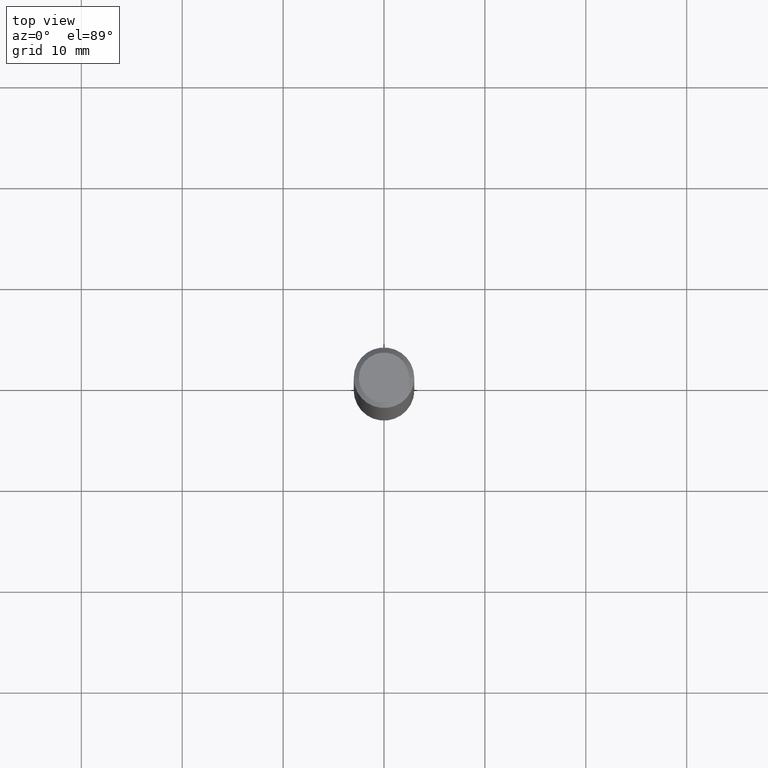
[diagram: clean part render]
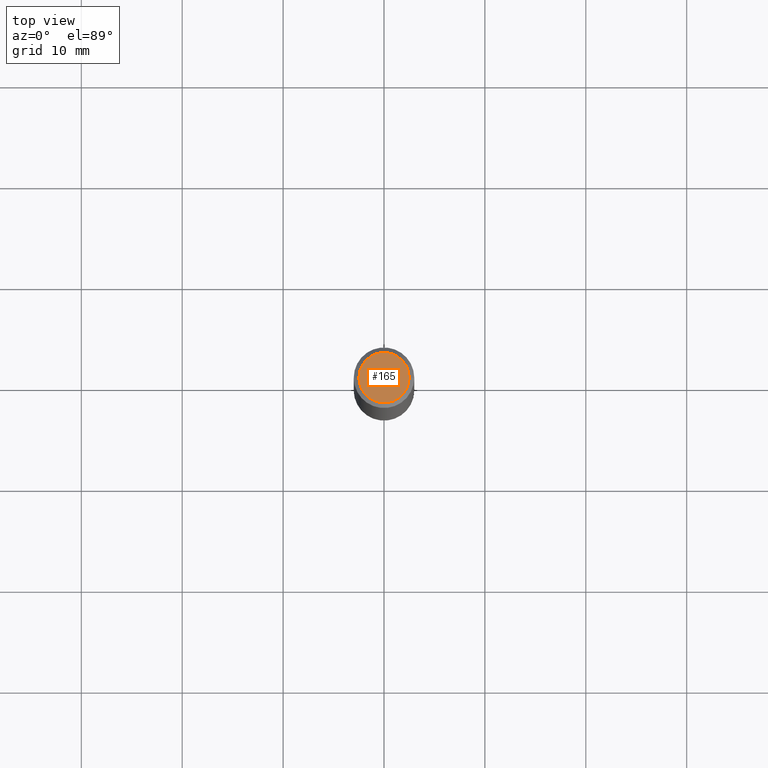
[diagram: same view with one face highlighted and labeled with its STEP entity id]
A machine part, top view. The second image highlights one B-rep face of the part: STEP entity #165.
In plain terms, the highlighted planar face has unit normal (0, -0, -1).
Its self-contained STEP definition (entity closure, byte-faithful):
#3 = AXIS2_PLACEMENT_3D ( 'NONE', #282, #142, #252 ) ;
#37 = CARTESIAN_POINT ( 'NONE',  ( -0.09809999999999984011, 7.199434520694526251E-16, -4.695363739110943904E-17 ) ) ;
#51 = AXIS2_PLACEMENT_3D ( 'NONE', #84, #147, #55 ) ;
#55 = DIRECTION ( 'NONE',  ( 1.000000000000000000, -6.982962677686266711E-15, 4.877161320636775200E-29 ) ) ;
#84 = CARTESIAN_POINT ( 'NONE',  ( 1.148236555768741665E-45, -1.639377487418492057E-31, -4.695363739110452099E-17 ) ) ;
#121 = VERTEX_POINT ( 'NONE', #343 ) ;
#141 = EDGE_CURVE ( 'NONE', #121, #261, #290, .T. ) ;
#142 = DIRECTION ( 'NONE',  ( 2.438088387897960049E-29, -3.491481338843145188E-15, -1.000000000000000000 ) ) ;
#143 = EDGE_LOOP ( 'NONE', ( #156, #224 ) ) ;
#147 = DIRECTION ( 'NONE',  ( -2.445468806185136597E-29, 3.491481338843145583E-15, 1.000000000000000000 ) ) ;
#156 = ORIENTED_EDGE ( 'NONE', *, *, #186, .T. ) ;
#165 = ADVANCED_FACE ( 'NONE', ( #310 ), #167, .F. ) ;
#167 = PLANE ( 'NONE',  #3 ) ;
#186 = EDGE_CURVE ( 'NONE', #261, #121, #308, .T. ) ;
#224 = ORIENTED_EDGE ( 'NONE', *, *, #141, .T. ) ;
#252 = DIRECTION ( 'NONE',  ( -1.000000000000000000, 6.982962677686265922E-15, -4.876176775795935793E-29 ) ) ;
#261 = VERTEX_POINT ( 'NONE', #37 ) ;
#282 = CARTESIAN_POINT ( 'NONE',  ( 6.850286386810215676E-16, 0.09809999999999984011, -3.659911380360642646E-16 ) ) ;
#290 = CIRCLE ( 'NONE', #51, 0.09809999999999984011 ) ;
#300 = CARTESIAN_POINT ( 'NONE',  ( 1.148236555768741665E-45, -1.639377487418492057E-31, -4.695363739110452099E-17 ) ) ;
#308 = CIRCLE ( 'NONE', #338, 0.09809999999999984011 ) ;
#310 = FACE_OUTER_BOUND ( 'NONE', #143, .T. ) ;
#318 = DIRECTION ( 'NONE',  ( -2.445468806185136597E-29, 3.491481338843145583E-15, 1.000000000000000000 ) ) ;
#338 = AXIS2_PLACEMENT_3D ( 'NONE', #300, #318, #349 ) ;
#343 = CARTESIAN_POINT ( 'NONE',  ( 0.09809999999999984011, -7.765346469475330681E-16, -4.695363739109941188E-17 ) ) ;
#349 = DIRECTION ( 'NONE',  ( 1.000000000000000000, -6.982962677686266711E-15, 4.877161320636775200E-29 ) ) ;